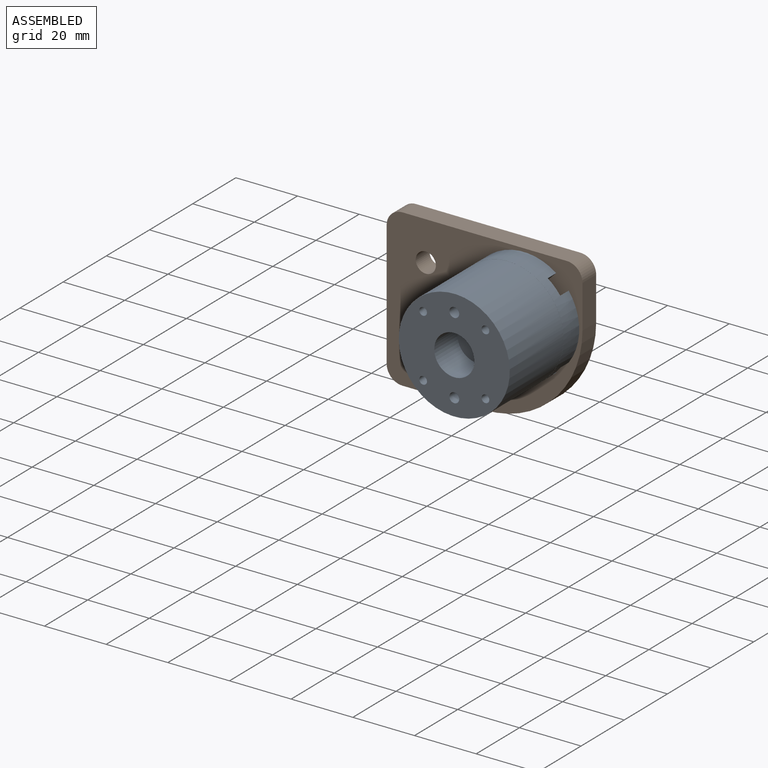
[diagram: assembled view]
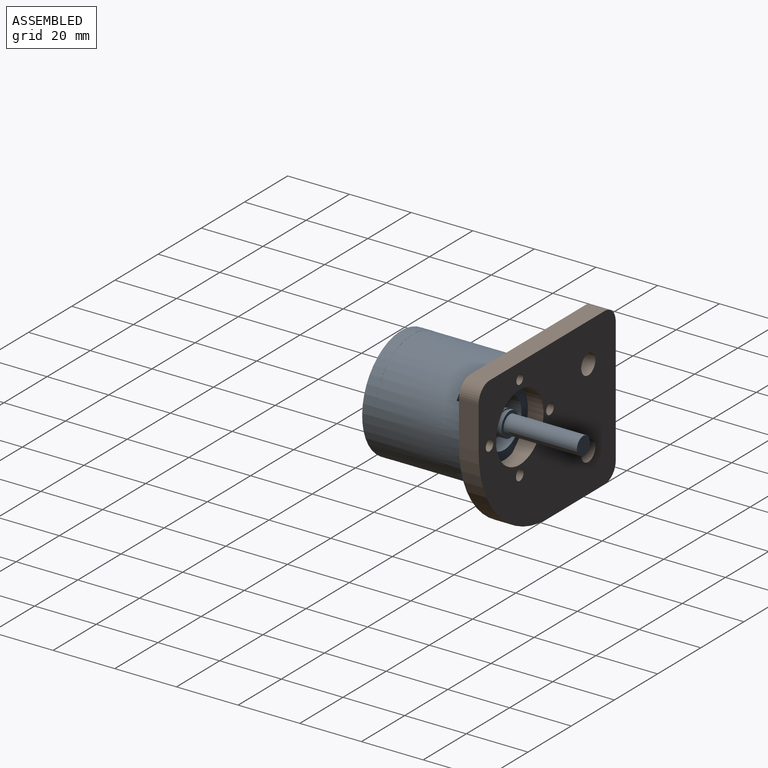
[diagram: assembled view, second angle]
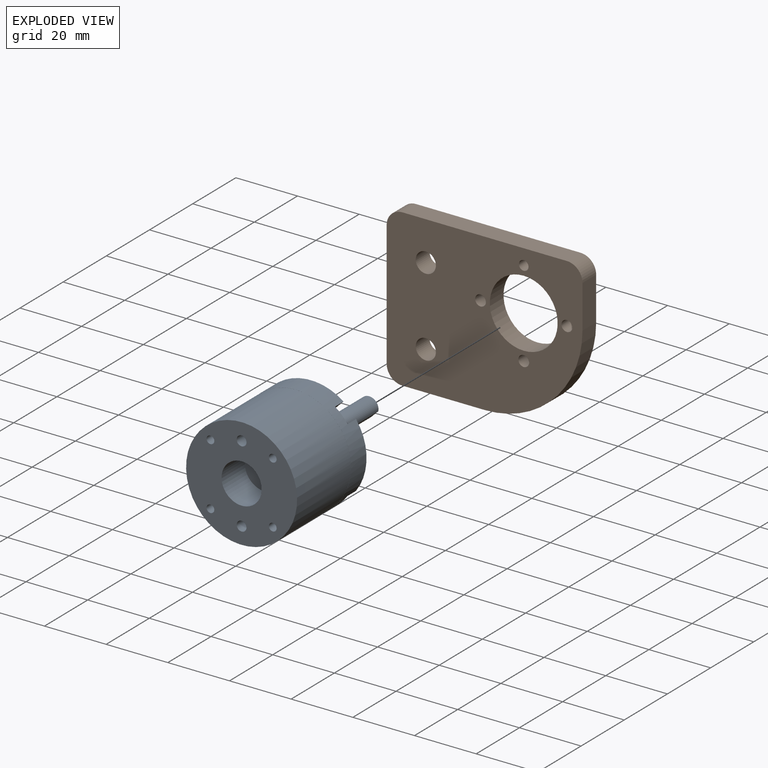
[diagram: exploded view]
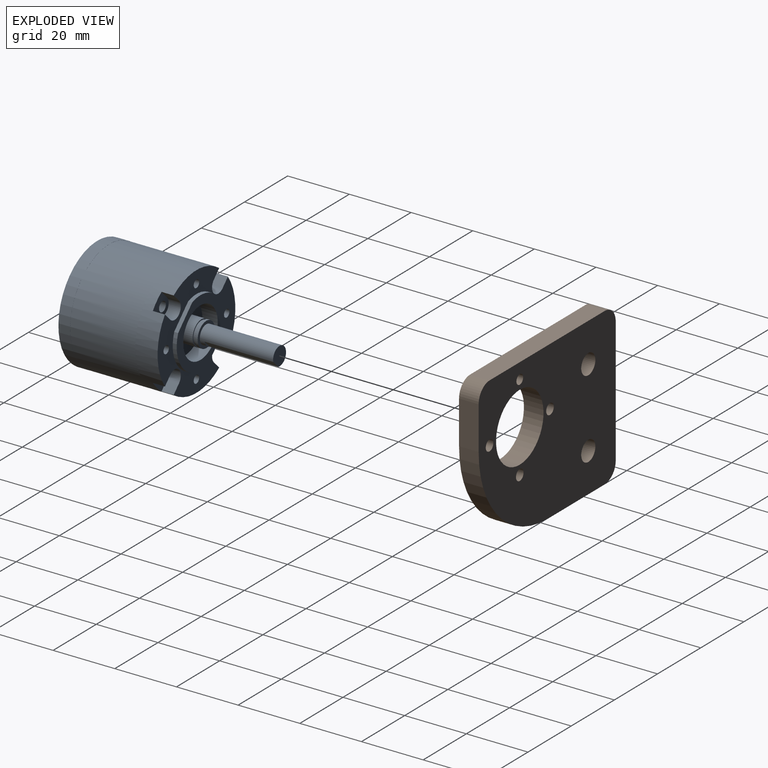
[diagram: exploded view, second angle]
ASSEMBLY  parts=2 mates=3
PART A: 66 faces, bbox 36x36x59.1 mm
  f0: cylinder r=4mm len=8mm, axis (0,0,-1), area 132.7mm2, adj f59,f65
  f1: cylinder r=3.68mm len=7.37mm, axis (0,0,-1), area 17mm2, adj f64,f65
  f2: cylinder r=4mm len=8mm, axis (0,0,-1), area 22.3mm2, adj f63,f64
  f3: cylinder r=3mm len=23.75mm, axis (0,0,-1), area 369.5mm2, adj f60,f61,f62,f63
  f4: cylinder r=8mm len=16mm, axis (0,0,1), area 251.3mm2, adj f28,f59
  f5: cylinder r=17.97mm len=35.95mm, axis (0,0,1), area 2383.8mm2, adj f57,f58
  f6: cylinder r=1.59mm len=5mm, axis (0,0,-1), area 49.9mm2, adj f30,f56
  f7: cylinder r=1.59mm len=5mm, axis (0,0,-1), area 49.9mm2, adj f30,f55
  f8: cylinder r=6.5mm len=13mm, axis (0,0,-1), area 440.9mm2, adj f30,f54
  f9: cylinder r=2.86mm len=5.72mm, axis (0,0,1), area 35.3mm2, adj f29,f51,f52,f53
  f10: cylinder r=1.25mm len=11.2mm, axis (0,0,1), area 88mm2, adj f30,f35
  f11: cylinder r=1.25mm len=11.2mm, axis (0,0,1), area 88mm2, adj f30,f36
  f12: cylinder r=1.25mm len=11.2mm, axis (0,0,1), area 88mm2, adj f30,f37
  f13: cylinder r=1.25mm len=11.2mm, axis (0,0,1), area 88mm2, adj f30,f38
  f14: cylinder r=1.25mm len=8.5mm, axis (0,0,1), area 66.7mm2, adj f15,f29
  f15: cone r=1.25mm half-angle=59deg, axis (0,0,1), area 5.7mm2, adj f14
  f16: cylinder r=1.25mm len=8.5mm, axis (0,0,1), area 66.7mm2, adj f17,f29
  f17: cone r=1.25mm half-angle=59deg, axis (0,0,1), area 5.7mm2, adj f16
  f18: cylinder r=1.25mm len=8.5mm, axis (0,0,1), area 66.7mm2, adj f19,f29
  f19: cone r=1.25mm half-angle=59deg, axis (0,0,1), area 5.7mm2, adj f18
  f20: cylinder r=1.25mm len=8.5mm, axis (0,0,1), area 66.7mm2, adj f21,f29
  f21: cone r=1.25mm half-angle=59deg, axis (0,0,1), area 5.7mm2, adj f20
  f22: cylinder r=1.59mm len=17.02mm, axis (0,0,1), area 169.7mm2, adj f35,f39
  f23: cylinder r=1.59mm len=17.02mm, axis (0,0,1), area 169.7mm2, adj f36,f43
  f24: cylinder r=1.59mm len=17.02mm, axis (0,0,1), area 169.7mm2, adj f37,f47
  f25: cylinder r=1.59mm len=17.02mm, axis (0,0,1), area 169.7mm2, adj f38,f51
  f26: cylinder r=18mm len=36mm, axis (0,0,-1), area 728.3mm2, adj f29,f39,f41,f42,f43,f45,f46,f47
  f27: cylinder r=18mm len=36mm, axis (0,0,-1), area 430.9mm2, adj f30,f57
  f28: plane 22x20mm, normal (0,0,1), area 166.7mm2, adj f4,f31,f32,f33,f34
  f29: plane 35.54x35.54mm, normal (0,0,1), area 496mm2, adj f9,f14,f16,f18,f20,f26,f31,f32
  f30: plane 36x36mm, normal (0,0,-1), area 849.7mm2, adj f6,f7,f8,f10,f11,f12,f13,f27
  f31: cylinder r=11mm len=20mm, axis (0,0,-1), area 32.6mm2, adj f28,f29,f32,f34
  f32: plane 9.17x1.3mm, normal (1,0,0), area 11.9mm2, adj f28,f29,f31,f33
  f33: cylinder r=11mm len=20mm, axis (0,0,-1), area 32.6mm2, adj f28,f29,f32,f34
  f34: plane 9.17x1.3mm, normal (-1,0,0), area 11.9mm2, adj f28,f29,f31,f33
  f35: plane 3.18x3.18mm, normal (0,0,1), area 3mm2, adj f10,f22
  f36: plane 3.18x3.18mm, normal (0,0,1), area 3mm2, adj f11,f23
  f37: plane 3.18x3.18mm, normal (0,0,1), area 3mm2, adj f12,f24
  f38: plane 3.18x3.18mm, normal (0,0,1), area 3mm2, adj f13,f25
  f39: plane 6.57x5.72mm, normal (0,0,1), area 25.7mm2, adj f22,f26,f40,f41,f42
  f40: cylinder r=2.86mm len=5.72mm, axis (0,0,1), area 35.3mm2, adj f29,f39,f41,f42
  f41: plane 3.94x3.48mm, normal (1,0,0), area 13.7mm2, adj f26,f29,f39,f40
  f42: plane 3.94x3.48mm, normal (-1,0,0), area 13.7mm2, adj f26,f29,f39,f40
  f43: plane 6.57x5.72mm, normal (0,0,1), area 25.7mm2, adj f23,f26,f44,f45,f46
  f44: cylinder r=2.86mm len=5.72mm, axis (0,0,1), area 35.3mm2, adj f29,f43,f45,f46
  f45: plane 3.94x3.48mm, normal (0,-1,0), area 13.7mm2, adj f26,f29,f43,f44
  f46: plane 3.94x3.48mm, normal (0,1,0), area 13.7mm2, adj f26,f29,f43,f44
  f47: plane 6.57x5.72mm, normal (0,0,1), area 25.7mm2, adj f24,f26,f48,f49,f50
  f48: cylinder r=2.86mm len=5.72mm, axis (0,0,1), area 35.3mm2, adj f29,f47,f49,f50
  f49: plane 3.94x3.48mm, normal (-1,0,0), area 13.7mm2, adj f26,f29,f47,f48
  f50: plane 3.94x3.48mm, normal (1,0,0), area 13.7mm2, adj f26,f29,f47,f48
  f51: plane 6.57x5.72mm, normal (0,0,1), area 25.7mm2, adj f9,f25,f26,f52,f53
  f52: plane 3.94x3.48mm, normal (0,1,0), area 13.7mm2, adj f9,f26,f29,f51
  f53: plane 3.94x3.48mm, normal (0,-1,0), area 13.7mm2, adj f9,f26,f29,f51
  f54: plane 13x13mm, normal (0,0,-1), area 132.7mm2, adj f8
  f55: plane 3.18x3.18mm, normal (0,0,-1), area 7.9mm2, adj f7
  f56: plane 3.18x3.18mm, normal (0,0,-1), area 7.9mm2, adj f6
  f57: plane 36x36mm, normal (0,0,1), area 2.9mm2, adj f5,f27
  f58: plane 36x36mm, normal (0,0,-1), area 2.9mm2, adj f5,f26
  f59: plane 16x16mm, normal (0,0,1), area 150.8mm2, adj f0,f4
  f60: plane 3.32x0.5mm, normal (0,0,1), area 1.1mm2, adj f3,f62
  f61: plane 6x5.5mm, normal (0,0,1), area 27.1mm2, adj f3,f62
  f62: plane 22.25x3.32mm, normal (0,1,0), area 73.8mm2, adj f3,f60,f61
  f63: plane 8x8mm, normal (0,0,1), area 22mm2, adj f2,f3
  f64: plane 8x8mm, normal (0,0,-1), area 7.7mm2, adj f1,f2
  f65: plane 8x8mm, normal (0,0,1), area 7.7mm2, adj f0,f1
PART B: 17 faces, bbox 63.5x6.4x50.8 mm
  f0: plane 26.67x6.35mm, normal (0,0,-1), area 169.4mm2, adj f4,f5,f13,f16
  f1: plane 13.97x6.35mm, normal (1,0,0), area 88.7mm2, adj f4,f5,f13,f14
  f2: plane 53.34x6.35mm, normal (0,0,1), area 338.7mm2, adj f4,f5,f14,f15
  f3: plane 40.64x6.35mm, normal (-1,0,0), area 258.1mm2, adj f4,f5,f15,f16
  f4: plane 63.5x50.8mm, normal (0,-1,0), area 2509.4mm2, adj f0,f1,f2,f3,f6,f7,f8,f9
  f5: plane 63.5x50.8mm, normal (0,1,0), area 2509.4mm2, adj f0,f1,f2,f3,f6,f7,f8,f9
  f6: cylinder r=3.26mm len=6.53mm, axis (0,-1,0), area 130.2mm2, adj f4,f5
  f7: cylinder r=3.26mm len=6.53mm, axis (0,-1,0), area 130.2mm2, adj f4,f5
  f8: cylinder r=11mm len=22mm, axis (0,-1,0), area 438.9mm2, adj f4,f5
  f9: cylinder r=1.75mm len=6.35mm, axis (0,-1,0), area 69.8mm2, adj f4,f5
  f10: cylinder r=1.75mm len=6.35mm, axis (0,-1,0), area 69.8mm2, adj f4,f5
  f11: cylinder r=1.75mm len=6.35mm, axis (0,-1,0), area 69.8mm2, adj f4,f5
  f12: cylinder r=1.55mm len=6.35mm, axis (0,-1,0), area 61.8mm2, adj f4,f5
  f13: cylinder r=31.75mm len=31.75mm, axis (0,-1,0), area 316.7mm2, adj f0,f1,f4,f5
  f14: cylinder r=5.08mm len=6.35mm, axis (0,1,0), area 50.7mm2, adj f1,f2,f4,f5
  f15: cylinder r=5.08mm len=6.35mm, axis (0,-1,0), area 50.7mm2, adj f2,f3,f4,f5
  f16: cylinder r=5.08mm len=6.35mm, axis (0,1,0), area 50.7mm2, adj f0,f3,f4,f5
PLACE A rot(axis=(-0.86,-0.36,-0.36),98.4deg) t=(12.42,-36.5,4.84)mm
PLACE B t=(-0.28,2.01,-1.51)mm
MATE planar A.f1 <-> B.f4  axis (0,1,0) through (12.42,-4.34,4.84)mm
MATE cylindrical A.f14 <-> B.f12  axis (0,1,0) through (12.42,-4.34,18.84)mm
MATE cylindrical A.f20 <-> B.f9  axis (0,1,0) through (26.42,-4.34,4.84)mm
